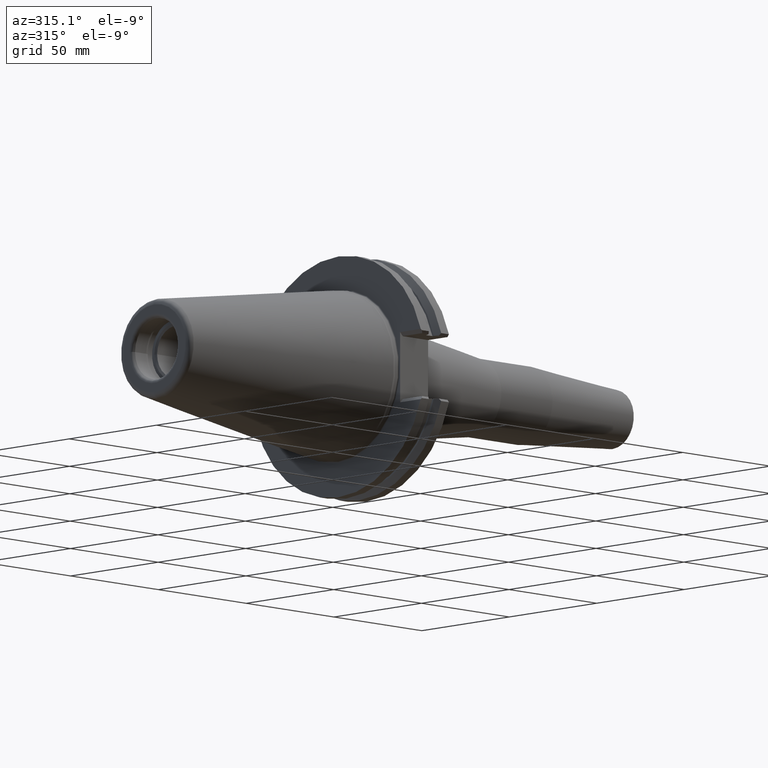
[diagram: clean part render]
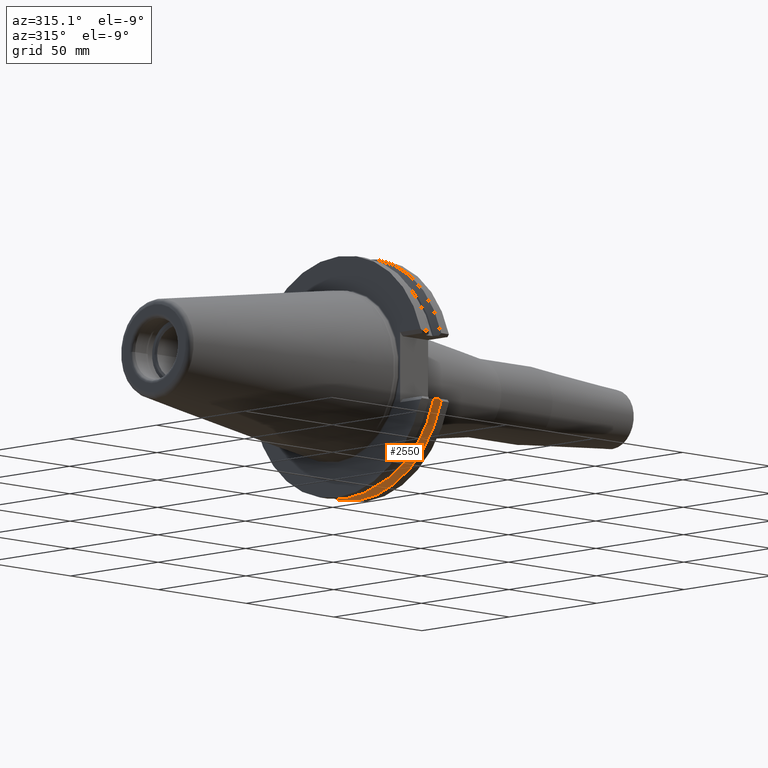
[diagram: same view with one face highlighted and labeled with its STEP entity id]
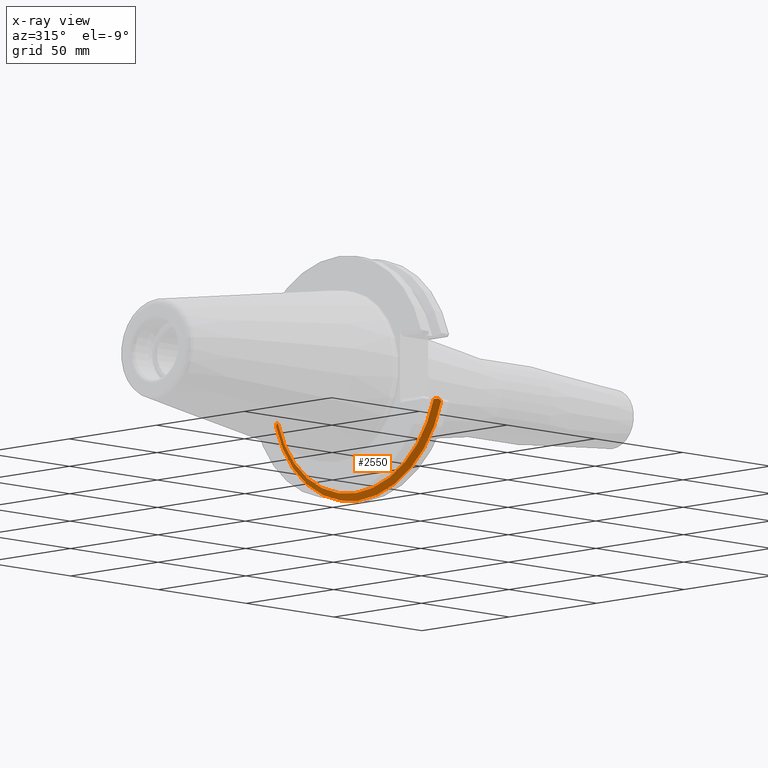
[diagram: x-ray of the same camera — body ghosted, the highlighted face saturated]
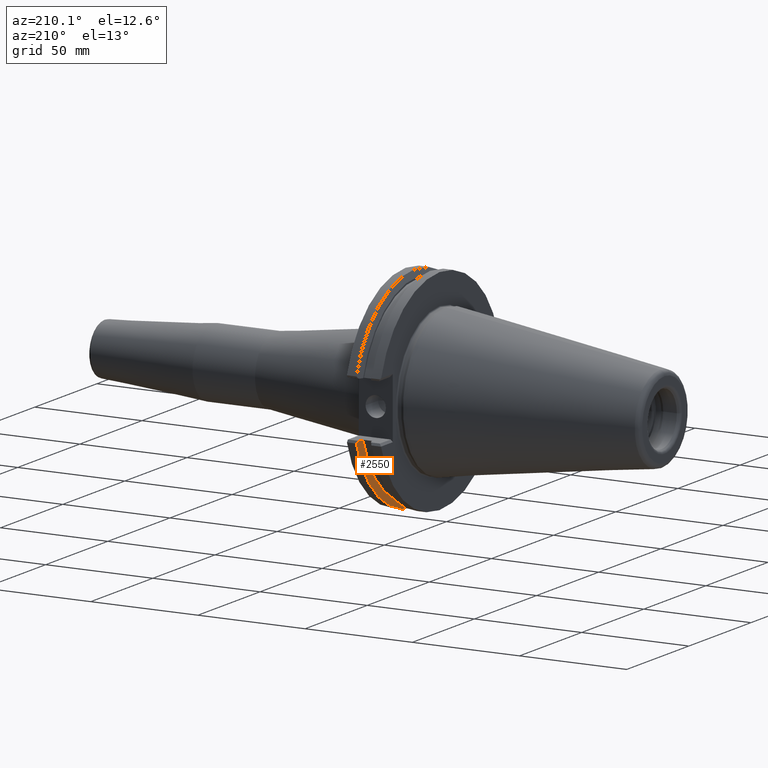
[diagram: same view with one face highlighted and labeled with its STEP entity id]
A machine part, auxiliary view. The second image highlights one B-rep face of the part: STEP entity #2550.
The next image is the same camera in x-ray: the body ghosted, the highlighted face saturated — about 5% of this face is hidden behind the body in this view.
A second angle (auxiliary view) of the same face is appended — the face is thin or edge-on in the first view.
In plain terms, the highlighted conical surface has half-angle 60 deg.
Its self-contained STEP definition (entity closure, byte-faithful):
#845=CARTESIAN_POINT('',(1.407758756395E1,4.644833319130E1,-1.285E1));
#846=CARTESIAN_POINT('',(1.417448846061E1,4.657547627078E1,-1.301988375746E1));
#847=CARTESIAN_POINT('',(1.436949019365E1,4.683054197918E1,-1.336069287675E1));
#848=CARTESIAN_POINT('',(1.456687887550E1,4.708717030334E1,-1.370358990392E1));
#849=CARTESIAN_POINT('',(1.466616676908E1,4.721587600675E1,-1.387556158017E1));
#851=CARTESIAN_POINT('',(1.304E1,4.458090078979E1,-1.285E1));
#852=CARTESIAN_POINT('',(1.321065402309E1,4.488851605990E1,-1.285E1));
#853=CARTESIAN_POINT('',(1.355424228944E1,4.550736841017E1,-1.285E1));
#854=CARTESIAN_POINT('',(1.390238201162E1,4.613346935749E1,-1.285E1));
#855=CARTESIAN_POINT('',(1.407758756395E1,4.644833319130E1,-1.285E1));
#857=CARTESIAN_POINT('',(1.304E1,0.E0,0.E0));
#858=DIRECTION('',(-1.E0,0.E0,0.E0));
#859=DIRECTION('',(0.E0,9.608802527774E-1,-2.769641489841E-1));
#860=AXIS2_PLACEMENT_3D('',#857,#858,#859);
#862=CARTESIAN_POINT('',(1.407758756395E1,-4.644833319130E1,-1.285E1));
#863=CARTESIAN_POINT('',(1.390239630584E1,-4.613349504579E1,-1.285E1));
#864=CARTESIAN_POINT('',(1.355427084597E1,-4.550741980454E1,-1.285E1));
#865=CARTESIAN_POINT('',(1.321066828424E1,-4.488854176657E1,-1.285E1));
#866=CARTESIAN_POINT('',(1.304E1,-4.458090078979E1,-1.285E1));
#868=CARTESIAN_POINT('',(1.466616676908E1,-4.721587600675E1,-1.387556158017E1));
#869=CARTESIAN_POINT('',(1.456632575073E1,-4.708645329435E1,-1.370263186372E1));
#870=CARTESIAN_POINT('',(1.436838934143E1,-4.682910646168E1,-1.335877479274E1));
#871=CARTESIAN_POINT('',(1.417394084349E1,-4.657475774567E1,-1.301892369148E1));
#872=CARTESIAN_POINT('',(1.407758756395E1,-4.644833319130E1,-1.285E1));
#874=CARTESIAN_POINT('',(1.466616676908E1,0.E0,0.E0));
#875=DIRECTION('',(1.E0,0.E0,0.E0));
#876=DIRECTION('',(0.E0,-9.594285193142E-1,-2.819519752130E-1));
#877=AXIS2_PLACEMENT_3D('',#874,#875,#876);
#1095=CARTESIAN_POINT('',(1.407758756395E1,4.644833319130E1,-1.285E1));
#1096=VERTEX_POINT('',#1095);
#1097=CARTESIAN_POINT('',(1.466616676908E1,4.721587600675E1,-1.387556158017E1));
#1098=VERTEX_POINT('',#1097);
#1116=CARTESIAN_POINT('',(1.407758756395E1,-4.644833319130E1,-1.285E1));
#1118=VERTEX_POINT('',#1116);
#1121=CARTESIAN_POINT('',(1.466616676908E1,-4.721587600675E1,
-1.387556158017E1));
#1122=VERTEX_POINT('',#1121);
#1263=CARTESIAN_POINT('',(1.304E1,4.458090078979E1,-1.285E1));
#1264=VERTEX_POINT('',#1263);
#1279=CARTESIAN_POINT('',(1.304E1,-4.458090078979E1,-1.285E1));
#1280=VERTEX_POINT('',#1279);
#2534=CARTESIAN_POINT('',(1.385308338454E1,0.E0,0.E0));
#2535=DIRECTION('',(1.E0,0.E0,0.E0));
#2536=DIRECTION('',(0.E0,0.E0,1.E0));
#2537=AXIS2_PLACEMENT_3D('',#2534,#2535,#2536);
#2538=CONICAL_SURFACE('',#2537,4.780419826719E1,6.E1);
#2539=ORIENTED_EDGE('',*,*,#2213,.F.);
#2540=ORIENTED_EDGE('',*,*,#2237,.F.);
#2542=ORIENTED_EDGE('',*,*,#2541,.T.);
#2544=ORIENTED_EDGE('',*,*,#2543,.F.);
#2546=ORIENTED_EDGE('',*,*,#2545,.F.);
#2547=ORIENTED_EDGE('',*,*,#2480,.T.);
#2548=EDGE_LOOP('',(#2539,#2540,#2542,#2544,#2546,#2547));
#2549=FACE_OUTER_BOUND('',#2548,.F.);
#2550=ADVANCED_FACE('',(#2549),#2538,.T.);
#850=B_SPLINE_CURVE_WITH_KNOTS('',3,(#845,#846,#847,#848,#849),.UNSPECIFIED.,
.F.,.F.,(4,1,4),(0.E0,5.E-1,1.E0),.UNSPECIFIED.);
#856=B_SPLINE_CURVE_WITH_KNOTS('',3,(#851,#852,#853,#854,#855),.UNSPECIFIED.,
.F.,.F.,(4,1,4),(0.E0,5.E-1,1.E0),.UNSPECIFIED.);
#861=CIRCLE('',#860,4.639589653438E1);
#867=B_SPLINE_CURVE_WITH_KNOTS('',3,(#862,#863,#864,#865,#866),.UNSPECIFIED.,
.F.,.F.,(4,1,4),(0.E0,5.E-1,1.E0),.UNSPECIFIED.);
#873=B_SPLINE_CURVE_WITH_KNOTS('',3,(#868,#869,#870,#871,#872),.UNSPECIFIED.,
.F.,.F.,(4,1,4),(0.E0,5.E-1,1.E0),.UNSPECIFIED.);
#878=CIRCLE('',#877,4.92125E1);
#2213=EDGE_CURVE('',#1096,#1098,#850,.T.);
#2237=EDGE_CURVE('',#1264,#1096,#856,.T.);
#2480=EDGE_CURVE('',#1122,#1098,#878,.T.);
#2541=EDGE_CURVE('',#1264,#1280,#861,.T.);
#2543=EDGE_CURVE('',#1118,#1280,#867,.T.);
#2545=EDGE_CURVE('',#1122,#1118,#873,.T.);